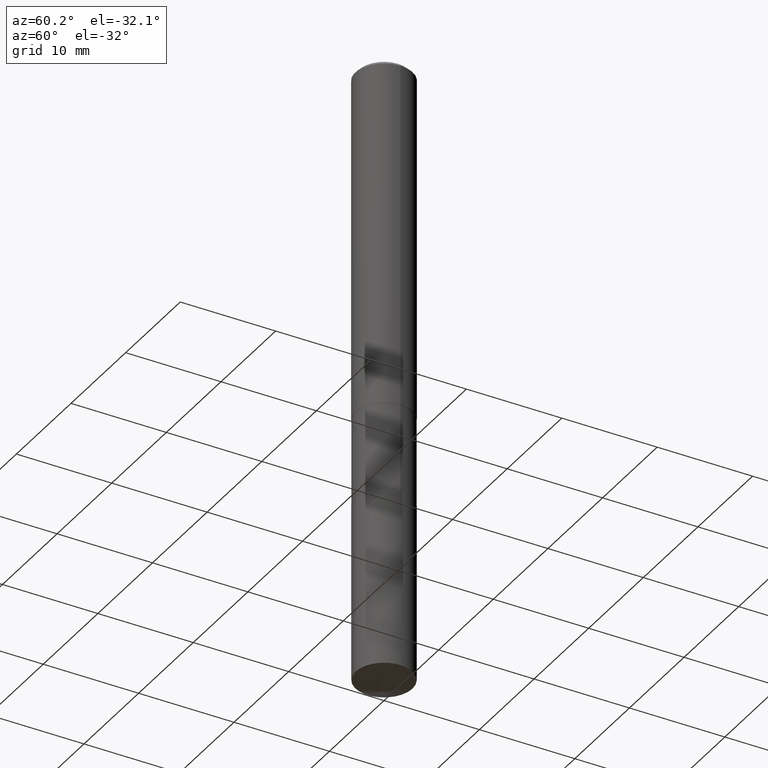
[diagram: clean part render]
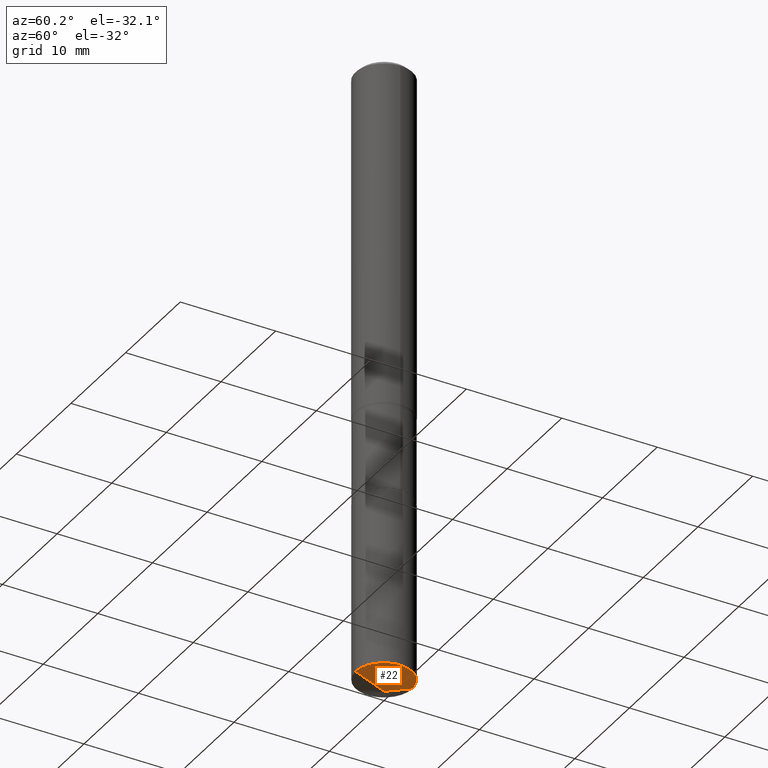
[diagram: same view with one face highlighted and labeled with its STEP entity id]
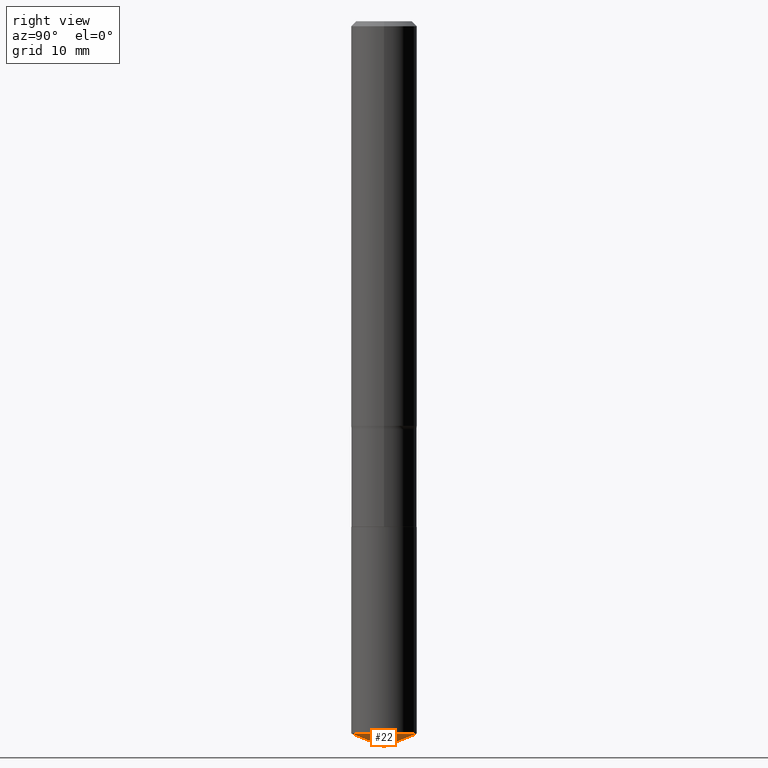
[diagram: same view with one face highlighted and labeled with its STEP entity id]
A machine part, auxiliary view. The second image highlights one B-rep face of the part: STEP entity #22.
A second angle (right view) of the same face is appended — the face is thin or edge-on in the first view.
In plain terms, the highlighted conical surface has half-angle 68 deg.
Its self-contained STEP definition (entity closure, byte-faithful):
#8 = CARTESIAN_POINT ( 'NONE',  ( -8.992226310692543550E-28, 1.283901078686414336E-13, 36.77167874015748339 ) ) ;
#22 = ADVANCED_FACE ( 'NONE', ( #199 ), #344, .T. ) ;
#30 = VERTEX_POINT ( 'NONE', #389 ) ;
#52 = EDGE_CURVE ( 'NONE', #456, #30, #242, .T. ) ;
#65 = EDGE_LOOP ( 'NONE', ( #189, #279, #117 ) ) ;
#82 = CARTESIAN_POINT ( 'NONE',  ( -8.184032258247681353E-16, -0.1172000000000089498, -2.551048126332119192 ) ) ;
#85 = DIRECTION ( 'NONE',  ( -6.982962677686266711E-15, -1.000000000000000000, 3.498761904101815330E-15 ) ) ;
#101 = AXIS2_PLACEMENT_3D ( 'NONE', #8, #321, #85 ) ;
#117 = ORIENTED_EDGE ( 'NONE', *, *, #136, .F. ) ;
#136 = EDGE_CURVE ( 'NONE', #197, #30, #385, .T. ) ;
#152 = DIRECTION ( 'NONE',  ( -2.445423962145081395E-29, 3.491545558060868781E-15, 1.000000000000000000 ) ) ;
#189 = ORIENTED_EDGE ( 'NONE', *, *, #480, .F. ) ;
#197 = VERTEX_POINT ( 'NONE', #82 ) ;
#199 = FACE_OUTER_BOUND ( 'NONE', #65, .T. ) ;
#242 = LINE ( 'NONE', #251, #319 ) ;
#251 = CARTESIAN_POINT ( 'NONE',  ( 6.354353472627372781E-29, -9.072199376058768375E-15, -2.598399999999999821 ) ) ;
#274 = DIRECTION ( 'NONE',  ( -6.474490251793181784E-15, -0.9271838545667867582, 0.3746065934159133470 ) ) ;
#279 = ORIENTED_EDGE ( 'NONE', *, *, #52, .T. ) ;
#301 = AXIS2_PLACEMENT_3D ( 'NONE', #490, #152, #380 ) ;
#319 = VECTOR ( 'NONE', #437, 39.37007874015748143 ) ;
#321 = DIRECTION ( 'NONE',  ( -2.445423962145081395E-29, 3.491545558060868781E-15, 1.000000000000000000 ) ) ;
#344 = CONICAL_SURFACE ( 'NONE', #101, 97.44436430772876179, 1.186823891356146188 ) ;
#380 = DIRECTION ( 'NONE',  ( -6.982962677686265922E-15, -1.000000000000000000, 4.661856644478264948E-15 ) ) ;
#385 = CIRCLE ( 'NONE', #301, 0.1171999999999999986 ) ;
#389 = CARTESIAN_POINT ( 'NONE',  ( 8.327560863108999253E-16, 0.1171999999999911030, -2.551048126332120081 ) ) ;
#400 = VECTOR ( 'NONE', #274, 39.37007874015748143 ) ;
#412 = CARTESIAN_POINT ( 'NONE',  ( 6.354189623237778583E-29, -9.072431978065361449E-15, -2.598399999999999821 ) ) ;
#437 = DIRECTION ( 'NONE',  ( 6.588037525764795235E-15, 0.9271838545667895337, 0.3746065934159069077 ) ) ;
#450 = LINE ( 'NONE', #454, #400 ) ;
#454 = CARTESIAN_POINT ( 'NONE',  ( 6.354189623237778583E-29, -9.072431978065361449E-15, -2.598399999999999821 ) ) ;
#456 = VERTEX_POINT ( 'NONE', #412 ) ;
#480 = EDGE_CURVE ( 'NONE', #456, #197, #450, .T. ) ;
#490 = CARTESIAN_POINT ( 'NONE',  ( 6.238475429274418212E-29, -8.906984452891117055E-15, -2.551048126332119637 ) ) ;